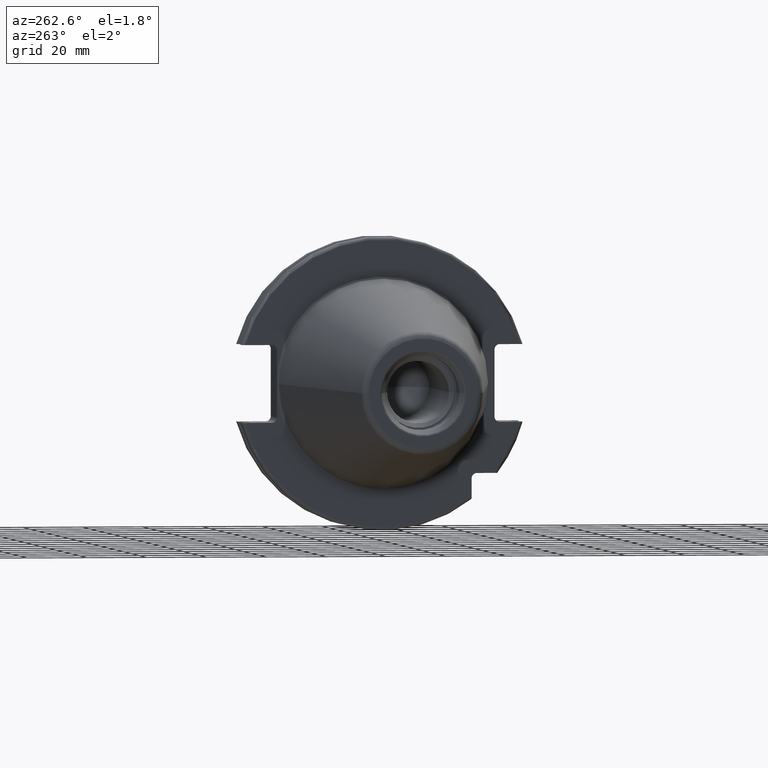
[diagram: clean part render]
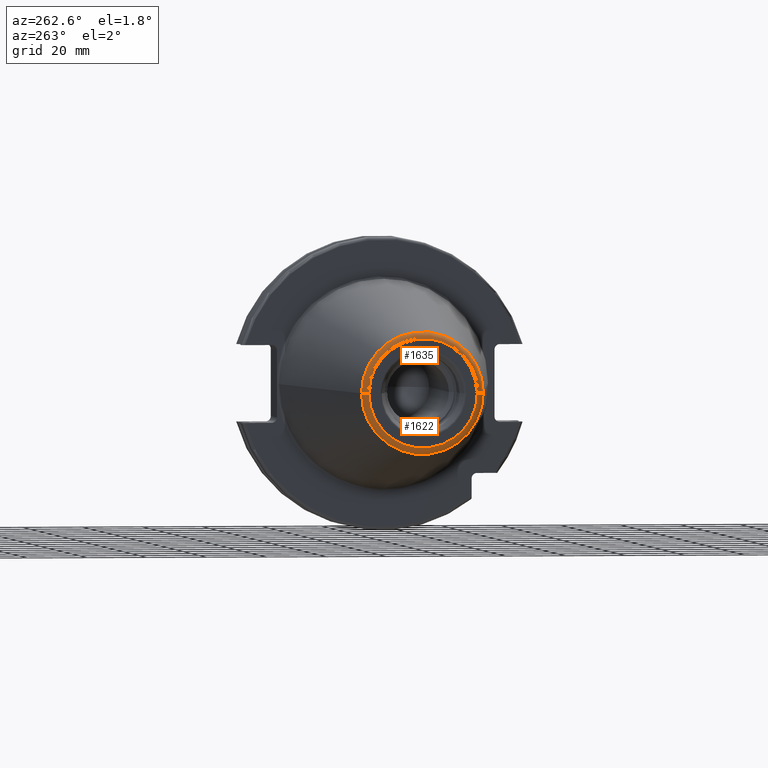
[diagram: same view with one multi-face feature highlighted, each face labeled with its STEP entity id]
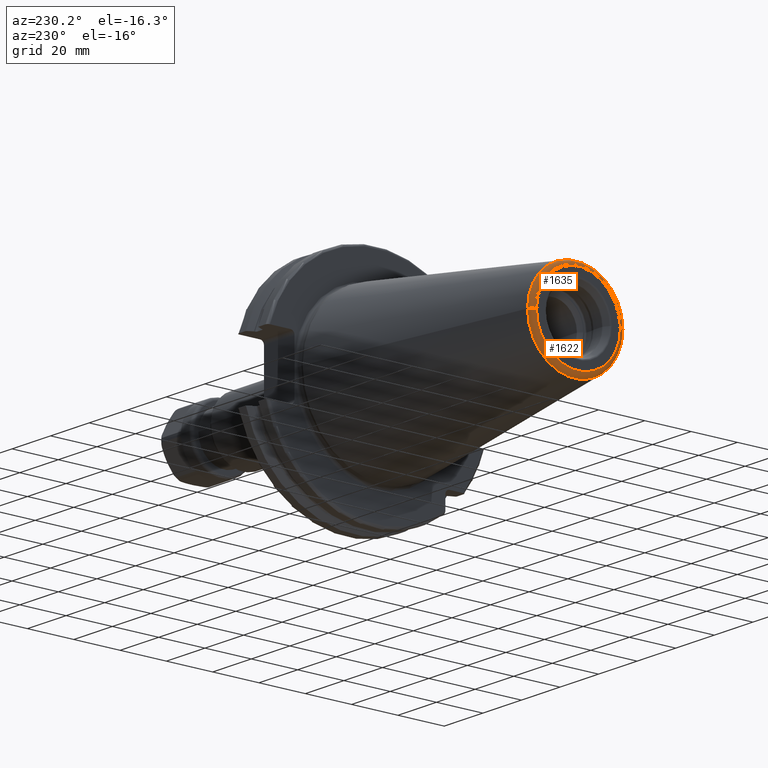
[diagram: same view with one multi-face feature highlighted, each face labeled with its STEP entity id]
A machine part, auxiliary view. The highlighted faces form ONE feature: a constant-radius fillet chain: 2 tangent blend faces with common blend radius 2.25 mm. The faces share edges in the B-rep.
A second angle (auxiliary view) of the same feature is appended — it is thin or edge-on in the first view.
Their STEP definitions:
[1] entity #1635 (Torus):
#7=CARTESIAN_POINT('',(-1.016E2,0.E0,0.E0));
#8=DIRECTION('',(1.E0,0.E0,0.E0));
#9=DIRECTION('',(0.E0,1.E0,0.E0));
#10=AXIS2_PLACEMENT_3D('',#7,#8,#9);
#22=CARTESIAN_POINT('',(-9.935E1,1.816144700117E1,0.E0));
#23=DIRECTION('',(0.E0,0.E0,1.E0));
#24=DIRECTION('',(-1.443186691705E-1,9.895312636440E-1,0.E0));
#25=AXIS2_PLACEMENT_3D('',#22,#23,#24);
#27=CARTESIAN_POINT('',(-9.935E1,-1.816144700117E1,0.E0));
#28=DIRECTION('',(0.E0,0.E0,-1.E0));
#29=DIRECTION('',(-1.443186691705E-1,-9.895312636440E-1,0.E0));
#30=AXIS2_PLACEMENT_3D('',#27,#28,#29);
#37=CARTESIAN_POINT('',(-9.967471700563E1,0.E0,0.E0));
#38=DIRECTION('',(1.E0,0.E0,0.E0));
#39=DIRECTION('',(0.E0,1.E0,0.E0));
#40=AXIS2_PLACEMENT_3D('',#37,#38,#39);
#1318=CARTESIAN_POINT('',(-9.967471700563E1,2.038789234437E1,0.E0));
#1319=CARTESIAN_POINT('',(-1.016E2,1.816144700117E1,0.E0));
#1320=VERTEX_POINT('',#1318);
#1321=VERTEX_POINT('',#1319);
#1322=CARTESIAN_POINT('',(-9.967471700563E1,-2.038789234437E1,0.E0));
#1323=CARTESIAN_POINT('',(-1.016E2,-1.816144700117E1,0.E0));
#1324=VERTEX_POINT('',#1322);
#1325=VERTEX_POINT('',#1323);
#1623=CARTESIAN_POINT('',(-9.935E1,0.E0,0.E0));
#1624=DIRECTION('',(1.E0,0.E0,0.E0));
#1625=DIRECTION('',(0.E0,-1.E0,0.E0));
#1626=AXIS2_PLACEMENT_3D('',#1623,#1624,#1625);
#1627=TOROIDAL_SURFACE('',#1626,1.816144700117E1,2.25E0);
#1628=ORIENTED_EDGE('',*,*,#1613,.F.);
#1630=ORIENTED_EDGE('',*,*,#1629,.T.);
#1631=ORIENTED_EDGE('',*,*,#1616,.T.);
#1632=ORIENTED_EDGE('',*,*,#1597,.F.);
#1633=EDGE_LOOP('',(#1628,#1630,#1631,#1632));
#1634=FACE_OUTER_BOUND('',#1633,.F.);
#1635=ADVANCED_FACE('',(#1634),#1627,.T.);
#11=CIRCLE('',#10,1.816144700117E1);
#26=CIRCLE('',#25,2.25E0);
#31=CIRCLE('',#30,2.25E0);
#41=CIRCLE('',#40,2.038789234437E1);
#1597=EDGE_CURVE('',#1321,#1325,#11,.T.);
#1613=EDGE_CURVE('',#1320,#1321,#26,.T.);
#1616=EDGE_CURVE('',#1324,#1325,#31,.T.);
#1629=EDGE_CURVE('',#1320,#1324,#41,.T.);
[2] entity #1622 (Torus):
#2=CARTESIAN_POINT('',(-1.016E2,0.E0,0.E0));
#3=DIRECTION('',(-1.E0,0.E0,0.E0));
#4=DIRECTION('',(0.E0,1.E0,0.E0));
#5=AXIS2_PLACEMENT_3D('',#2,#3,#4);
#22=CARTESIAN_POINT('',(-9.935E1,1.816144700117E1,0.E0));
#23=DIRECTION('',(0.E0,0.E0,1.E0));
#24=DIRECTION('',(-1.443186691705E-1,9.895312636440E-1,0.E0));
#25=AXIS2_PLACEMENT_3D('',#22,#23,#24);
#27=CARTESIAN_POINT('',(-9.935E1,-1.816144700117E1,0.E0));
#28=DIRECTION('',(0.E0,0.E0,-1.E0));
#29=DIRECTION('',(-1.443186691705E-1,-9.895312636440E-1,0.E0));
#30=AXIS2_PLACEMENT_3D('',#27,#28,#29);
#32=CARTESIAN_POINT('',(-9.967471700563E1,0.E0,0.E0));
#33=DIRECTION('',(-1.E0,0.E0,0.E0));
#34=DIRECTION('',(0.E0,1.E0,0.E0));
#35=AXIS2_PLACEMENT_3D('',#32,#33,#34);
#1318=CARTESIAN_POINT('',(-9.967471700563E1,2.038789234437E1,0.E0));
#1319=CARTESIAN_POINT('',(-1.016E2,1.816144700117E1,0.E0));
#1320=VERTEX_POINT('',#1318);
#1321=VERTEX_POINT('',#1319);
#1322=CARTESIAN_POINT('',(-9.967471700563E1,-2.038789234437E1,0.E0));
#1323=CARTESIAN_POINT('',(-1.016E2,-1.816144700117E1,0.E0));
#1324=VERTEX_POINT('',#1322);
#1325=VERTEX_POINT('',#1323);
#1608=CARTESIAN_POINT('',(-9.935E1,0.E0,0.E0));
#1609=DIRECTION('',(1.E0,0.E0,0.E0));
#1610=DIRECTION('',(0.E0,-1.E0,0.E0));
#1611=AXIS2_PLACEMENT_3D('',#1608,#1609,#1610);
#1612=TOROIDAL_SURFACE('',#1611,1.816144700117E1,2.25E0);
#1614=ORIENTED_EDGE('',*,*,#1613,.T.);
#1615=ORIENTED_EDGE('',*,*,#1595,.T.);
#1617=ORIENTED_EDGE('',*,*,#1616,.F.);
#1619=ORIENTED_EDGE('',*,*,#1618,.F.);
#1620=EDGE_LOOP('',(#1614,#1615,#1617,#1619));
#1621=FACE_OUTER_BOUND('',#1620,.F.);
#1622=ADVANCED_FACE('',(#1621),#1612,.T.);
#6=CIRCLE('',#5,1.816144700117E1);
#26=CIRCLE('',#25,2.25E0);
#31=CIRCLE('',#30,2.25E0);
#36=CIRCLE('',#35,2.038789234437E1);
#1595=EDGE_CURVE('',#1321,#1325,#6,.T.);
#1613=EDGE_CURVE('',#1320,#1321,#26,.T.);
#1616=EDGE_CURVE('',#1324,#1325,#31,.T.);
#1618=EDGE_CURVE('',#1320,#1324,#36,.T.);